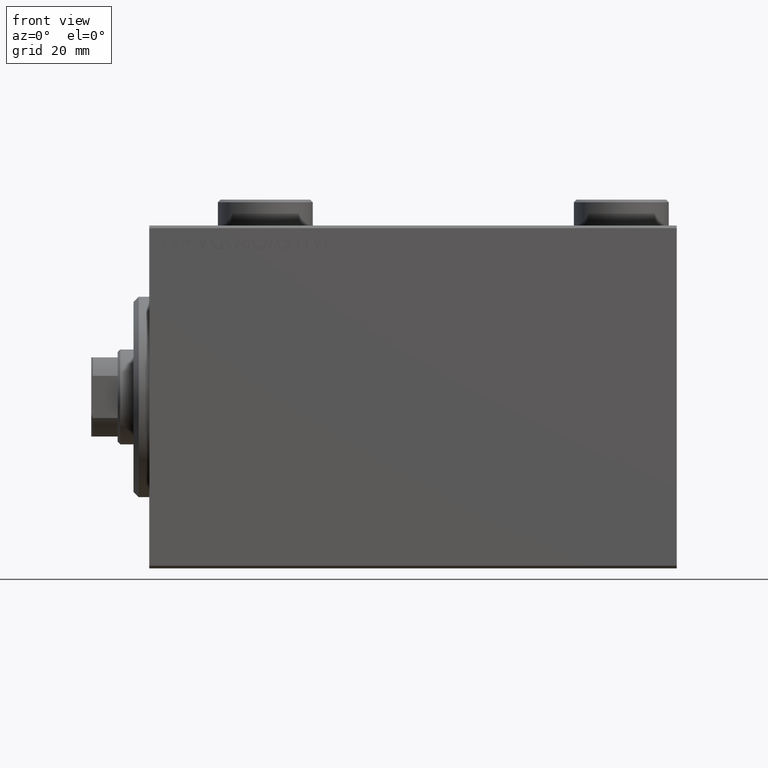
[diagram: clean part render]
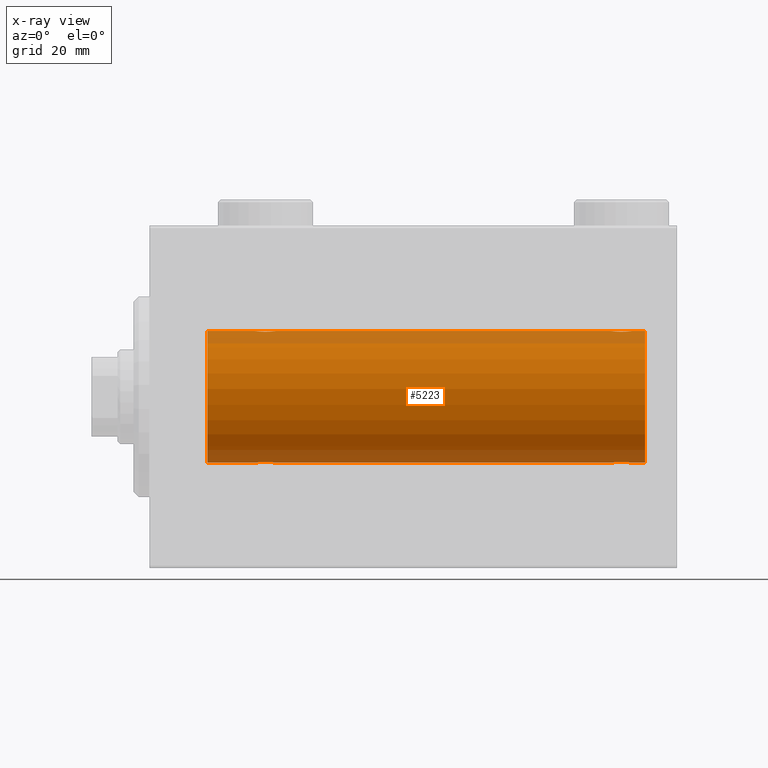
[diagram: x-ray — body ghosted, one internal face saturated and labeled with its STEP entity id]
A machine part, front view, then the same camera in x-ray: the body is ghosted and one INTERNAL B-rep face — a face not visible from any outside direction — is saturated and labeled: STEP entity #5223.
In plain terms, the highlighted cylindrical surface (partial cylindrical patch) has radius 12.5 mm, axis along (-1, -0, -0).
Its self-contained STEP definition (entity closure, byte-faithful):
#487 = EDGE_CURVE ( 'NONE', #20938, #22906, #15159, .T. ) ;
#629 = CARTESIAN_POINT ( 'NONE',  ( 87.50000000000002842, -7.266434456262306043E-23, 12.50000000000000000 ) ) ;
#669 = VERTEX_POINT ( 'NONE', #690 ) ;
#690 = CARTESIAN_POINT ( 'NONE',  ( 94.00000000000000000, 0.000000000000000000, 12.50000000000000000 ) ) ;
#831 = CARTESIAN_POINT ( 'NONE',  ( 24.00000000000000000, -2.019790789754703983E-15, 12.50000000000000000 ) ) ;
#898 = CARTESIAN_POINT ( 'NONE',  ( 23.32116712851443552, -1.507135374967700114, 12.40915432986586708 ) ) ;
#1188 = DIRECTION ( 'NONE',  ( -1.000000000000000000, 0.000000000000000000, 0.000000000000000000 ) ) ;
#1282 = ORIENTED_EDGE ( 'NONE', *, *, #11051, .F. ) ;
#1350 = CARTESIAN_POINT ( 'NONE',  ( 20.67700056892266502, -1.505544071529936634, 12.40934942683854025 ) ) ;
#1884 = CARTESIAN_POINT ( 'NONE',  ( 91.50000000000007105, -0.2646816682749792982, 12.50000000000000178 ) ) ;
#2197 = CARTESIAN_POINT ( 'NONE',  ( 22.26391373102435622, -1.986793270638196551, -12.34112317291864791 ) ) ;
#2420 = CARTESIAN_POINT ( 'NONE',  ( 22.13340250451295077, -1.999916920503817197, -12.33897614545467469 ) ) ;
#2781 = CARTESIAN_POINT ( 'NONE',  ( 90.14425278797730812, -1.897913903092038890, 12.35518060345724933 ) ) ;
#2791 = LINE ( 'NONE', #41729, #31569 ) ;
#2793 = CARTESIAN_POINT ( 'NONE',  ( 94.00000000000000000, 1.530808498934191521E-15, -12.50000000000000000 ) ) ;
#2820 = CYLINDRICAL_SURFACE ( 'NONE', #4971, 12.50000000000000000 ) ;
#2985 = CARTESIAN_POINT ( 'NONE',  ( 91.50000000000004263, -0.2612140938986735050, -12.50000000000000355 ) ) ;
#3214 = CARTESIAN_POINT ( 'NONE',  ( 88.49900207901492877, -1.736403706023271099, -12.37902502246767611 ) ) ;
#3447 = CARTESIAN_POINT ( 'NONE',  ( 91.29785606468260539, -0.8858253204747997822, -12.46915613403960954 ) ) ;
#3660 = EDGE_CURVE ( 'NONE', #669, #10006, #8176, .T. ) ;
#3804 = ORIENTED_EDGE ( 'NONE', *, *, #4597, .T. ) ;
#3907 = CARTESIAN_POINT ( 'NONE',  ( 22.51693726697628506, -1.936441098420709439, 12.34912369794528786 ) ) ;
#4225 = CARTESIAN_POINT ( 'NONE',  ( 87.50000000000002842, -0.2612140938986747818, 12.50000000000000000 ) ) ;
#4362 = CARTESIAN_POINT ( 'NONE',  ( 23.99999999999998934, -0.2646816682749779659, 12.49999999999999822 ) ) ;
#4597 = EDGE_CURVE ( 'NONE', #42626, #5488, #31434, .T. ) ;
#4673 = CARTESIAN_POINT ( 'NONE',  ( 87.76436921980426575, -1.002396200863564291, 12.46022444231050663 ) ) ;
#4878 = DIRECTION ( 'NONE',  ( 0.000000000000000000, 0.000000000000000000, 1.000000000000000000 ) ) ;
#4971 = AXIS2_PLACEMENT_3D ( 'NONE', #41301, #34135, #9732 ) ;
#5223 = ADVANCED_FACE ( 'NONE', ( #33684 ), #2820, .F. ) ;
#5352 = CARTESIAN_POINT ( 'NONE',  ( 91.50000000000002842, 3.163483401492493339E-15, 12.50000000000000000 ) ) ;
#5488 = VERTEX_POINT ( 'NONE', #6739 ) ;
#5869 = CARTESIAN_POINT ( 'NONE',  ( 21.73906502714393341, -1.987194304939077671, -12.34105826212746138 ) ) ;
#6306 = CARTESIAN_POINT ( 'NONE',  ( 22.51961472357873717, -1.935716533151642826, -12.34923763528285257 ) ) ;
#6427 = CARTESIAN_POINT ( 'NONE',  ( 88.17883287148561067, -1.507135374967704999, -12.40915432986586531 ) ) ;
#6662 = CARTESIAN_POINT ( 'NONE',  ( 91.23563078019580530, -1.002396200863558073, -12.46022444231050663 ) ) ;
#6700 = EDGE_CURVE ( 'NONE', #30575, #10006, #18895, .T. ) ;
#6739 = CARTESIAN_POINT ( 'NONE',  ( 24.00000000000000000, 1.530808426277417854E-15, -12.50000000000000000 ) ) ;
#7815 = CARTESIAN_POINT ( 'NONE',  ( 21.73608626897564733, -1.986793270638199882, 12.34112317291865146 ) ) ;
#8176 = LINE ( 'NONE', #22202, #23293 ) ;
#8363 = CARTESIAN_POINT ( 'NONE',  ( 88.17700056892270766, -1.505544071529930639, 12.40934942683854025 ) ) ;
#8495 = CARTESIAN_POINT ( 'NONE',  ( 20.00000000000000000, -0.2612140938986765581, 12.50000000000000000 ) ) ;
#9031 = CARTESIAN_POINT ( 'NONE',  ( 90.38616153879436865, -1.797736511708053264, 12.37015393445321010 ) ) ;
#9328 = CARTESIAN_POINT ( 'NONE',  ( 21.11383846120566332, -1.797736511708062368, -12.37015393445320122 ) ) ;
#9550 = CARTESIAN_POINT ( 'NONE',  ( 22.88874725797039389, -1.796480516834687347, -12.37033750336835247 ) ) ;
#9732 = DIRECTION ( 'NONE',  ( 0.000000000000000000, 0.000000000000000000, 1.000000000000000000 ) ) ;
#9995 = CARTESIAN_POINT ( 'NONE',  ( 20.67883287148555382, -1.507135374967699670, -12.40915432986587064 ) ) ;
#10006 = VERTEX_POINT ( 'NONE', #5352 ) ;
#10112 = ORIENTED_EDGE ( 'NONE', *, *, #32858, .F. ) ;
#10120 = EDGE_LOOP ( 'NONE', ( #10112, #23759, #17552, #3804, #33013, #39964, #24573, #1282, #45045, #11024, #16467, #22193 ) ) ;
#10123 = CARTESIAN_POINT ( 'NONE',  ( 91.08981090228292032, -1.220538259806345893, -12.44075068685996932 ) ) ;
#10357 = CARTESIAN_POINT ( 'NONE',  ( 91.44744340572330543, -0.5247436444070332495, -12.49130933415156264 ) ) ;
#10398 = LINE ( 'NONE', #2793, #13351 ) ;
#10402 = CARTESIAN_POINT ( 'NONE',  ( 94.00000000000000000, 1.530808498934191521E-15, -12.50000000000000000 ) ) ;
#10497 = CARTESIAN_POINT ( 'NONE',  ( 94.00000000000000000, 1.530808498934191521E-15, -12.50000000000000000 ) ) ;
#10589 = CARTESIAN_POINT ( 'NONE',  ( 90.38874725797043652, -1.796480516834679797, -12.37033750336835425 ) ) ;
#10822 = CARTESIAN_POINT ( 'NONE',  ( 88.85574721202272030, -1.897913903092048660, -12.35518060345724933 ) ) ;
#11024 = ORIENTED_EDGE ( 'NONE', *, *, #36709, .F. ) ;
#11051 = EDGE_CURVE ( 'NONE', #41641, #22906, #2791, .T. ) ;
#11055 = CARTESIAN_POINT ( 'NONE',  ( 20.99654425923307599, -1.734959850168413142, 12.37922718965050528 ) ) ;
#11278 = CARTESIAN_POINT ( 'NONE',  ( 19.99999999999999645, -7.265724481447607133E-23, 12.50000000000000000 ) ) ;
#11497 = CARTESIAN_POINT ( 'NONE',  ( 22.88616153879432957, -1.797736511708064366, 12.37015393445321010 ) ) ;
#11722 = DIRECTION ( 'NONE',  ( -1.000000000000000000, -0.000000000000000000, -0.000000000000000000 ) ) ;
#11729 = CARTESIAN_POINT ( 'NONE',  ( 22.64425278797729746, -1.897913903092049104, 12.35518060345724933 ) ) ;
#11841 = LINE ( 'NONE', #25857, #17841 ) ;
#12498 = CARTESIAN_POINT ( 'NONE',  ( 88.49654425923313283, -1.734959850168412254, 12.37922718965051061 ) ) ;
#12572 = CARTESIAN_POINT ( 'NONE',  ( 23.22027149897420628, -1.589951752150275732, -12.39868561261689273 ) ) ;
#12939 = CARTESIAN_POINT ( 'NONE',  ( 90.01693726697629927, -1.936441098420705220, 12.34912369794528786 ) ) ;
#13022 = CARTESIAN_POINT ( 'NONE',  ( 21.35574721202270254, -1.897913903092047327, -12.35518060345725289 ) ) ;
#13074 = EDGE_CURVE ( 'NONE', #40538, #34077, #35253, .T. ) ;
#13250 = CARTESIAN_POINT ( 'NONE',  ( 94.00000000000000000, 1.530808498934191521E-15, -12.50000000000000000 ) ) ;
#13351 = VECTOR ( 'NONE', #13621, 1000.000000000000000 ) ;
#13363 = CARTESIAN_POINT ( 'NONE',  ( 90.72027149897422760, -1.589951752150273512, -12.39868561261689095 ) ) ;
#13392 = CARTESIAN_POINT ( 'NONE',  ( 91.44665679898383814, -0.5275951738695600080, 12.49118442338578561 ) ) ;
#13469 = CARTESIAN_POINT ( 'NONE',  ( 21.86910032676576421, -2.000082296475566679, -12.33894933996983490 ) ) ;
#13621 = DIRECTION ( 'NONE',  ( -1.000000000000000000, -0.000000000000000000, -0.000000000000000000 ) ) ;
#13815 = CARTESIAN_POINT ( 'NONE',  ( 89.63340250451300051, -1.999916920503816531, -12.33897614545467647 ) ) ;
#14446 = VECTOR ( 'NONE', #11722, 1000.000000000000000 ) ;
#15159 = CIRCLE ( 'NONE', #32792, 12.50000000000000000 ) ;
#15404 = CARTESIAN_POINT ( 'NONE',  ( 23.74662136620892383, -1.008535157355843648, 12.46157701909767823 ) ) ;
#15578 = CARTESIAN_POINT ( 'NONE',  ( 19.99999999999999645, -7.265724481447607133E-23, 12.50000000000000000 ) ) ;
#16092 = VERTEX_POINT ( 'NONE', #18957 ) ;
#16467 = ORIENTED_EDGE ( 'NONE', *, *, #6700, .T. ) ;
#16600 = CARTESIAN_POINT ( 'NONE',  ( 89.36659749548705634, -1.999916920503812534, 12.33897614545467647 ) ) ;
#16684 = CARTESIAN_POINT ( 'NONE',  ( 23.32299943107732432, -1.505544071529935080, -12.40934942683853848 ) ) ;
#16910 = CARTESIAN_POINT ( 'NONE',  ( 23.79785606468258052, -0.8858253204748003373, -12.46915613403960954 ) ) ;
#17028 = CARTESIAN_POINT ( 'NONE',  ( 90.50345574076696664, -1.734959850168409146, -12.37922718965050528 ) ) ;
#17248 = CARTESIAN_POINT ( 'NONE',  ( 87.90255225308978027, -1.231226695485375888, -12.44059298055988094 ) ) ;
#17487 = CARTESIAN_POINT ( 'NONE',  ( 87.50000000000000000, -0.2646816682749892902, -12.49999999999999289 ) ) ;
#17552 = ORIENTED_EDGE ( 'NONE', *, *, #34358, .T. ) ;
#17841 = VECTOR ( 'NONE', #39937, 1000.000000000000000 ) ;
#18210 = VECTOR ( 'NONE', #24525, 1000.000000000000000 ) ;
#18480 = B_SPLINE_CURVE_WITH_KNOTS ( 'NONE', 3,
 ( #41916, #2985, #10357, #3447, #6662, #10123, #45614, #20709, #13363, #17028, #10589, #34741, #35437, #20482, #13815, #38217, #37985, #27375, #10822, #24850, #3214, #45387, #6427, #17248, #31067, #31288, #17487, #27838 ),
 .UNSPECIFIED., .F., .F.,
 ( 4, 2, 2, 2, 2, 2, 2, 2, 2, 2, 2, 2, 2, 4 ),
 ( 0.006262980370572168026, 0.007045658964677356875, 0.007436998261729959106, 0.007828337558782561337, 0.008219676855835163568, 0.008611016152887765798, 0.009002355449940368029, 0.009393694746992970260, 0.009785034044045572491, 0.01017637334109817472, 0.01056771263815077869, 0.01095905193520338092, 0.01174173052930858538, 0.01252440912341379158 ),
 .UNSPECIFIED. ) ;
#18895 = B_SPLINE_CURVE_WITH_KNOTS ( 'NONE', 3,
 ( #21707, #4225, #25613, #36216, #4673, #32750, #39920, #8363, #36443, #12498, #44962, #37116, #34102, #41266, #16600, #30424, #23513, #12939, #2781, #9031, #34324, #40812, #27183, #37573, #26963, #13392, #1884, #30643 ),
 .UNSPECIFIED., .F., .F.,
 ( 4, 2, 2, 2, 2, 2, 2, 2, 2, 2, 2, 2, 2, 4 ),
 ( 0.006262980370572151546, 0.007045658964677331722, 0.007436998261729929616, 0.007828337558782528377, 0.008219676855835125404, 0.008611016152887724165, 0.009002355449940321191, 0.009393694746992919953, 0.009785034044045518714, 0.01017637334109811748, 0.01056771263815071624, 0.01095905193520331326, 0.01174173052930854028, 0.01252440912341376555 ),
 .UNSPECIFIED. ) ;
#18957 = CARTESIAN_POINT ( 'NONE',  ( 19.99999999999999645, -3.213890523917628161E-15, -12.50000000000000000 ) ) ;
#19171 = CIRCLE ( 'NONE', #26511, 12.50000000000000000 ) ;
#19700 = CARTESIAN_POINT ( 'NONE',  ( 24.00000000000000711, -0.2612140938986747818, -12.50000000000000533 ) ) ;
#20148 = CARTESIAN_POINT ( 'NONE',  ( 20.25337863379106551, -1.008535157355840761, -12.46157701909767646 ) ) ;
#20368 = CARTESIAN_POINT ( 'NONE',  ( 20.78145880458060901, -1.591305132013878021, -12.39851226212236313 ) ) ;
#20482 = CARTESIAN_POINT ( 'NONE',  ( 89.76391373102438820, -1.986793270638198994, -12.34112317291865146 ) ) ;
#20709 = CARTESIAN_POINT ( 'NONE',  ( 90.82299943107734919, -1.505544071529932193, -12.40934942683853848 ) ) ;
#20938 = VERTEX_POINT ( 'NONE', #41511 ) ;
#21627 = CARTESIAN_POINT ( 'NONE',  ( 23.00099792098507834, -1.736403706023272875, 12.37902502246767789 ) ) ;
#21707 = CARTESIAN_POINT ( 'NONE',  ( 87.50000000000002842, -7.266434456262306043E-23, 12.50000000000000000 ) ) ;
#21852 = CARTESIAN_POINT ( 'NONE',  ( 23.21854119541937678, -1.591305132013879131, 12.39851226212236135 ) ) ;
#22193 = ORIENTED_EDGE ( 'NONE', *, *, #3660, .F. ) ;
#22202 = CARTESIAN_POINT ( 'NONE',  ( 94.00000000000000000, 0.000000000000000000, 12.50000000000000000 ) ) ;
#22292 = CARTESIAN_POINT ( 'NONE',  ( 23.94665679898379906, -0.5275951738695691118, 12.49118442338578561 ) ) ;
#22518 = CARTESIAN_POINT ( 'NONE',  ( 21.11125274202960256, -1.796480516834689567, 12.37033750336835602 ) ) ;
#22906 = VERTEX_POINT ( 'NONE', #42743 ) ;
#23293 = VECTOR ( 'NONE', #37388, 1000.000000000000000 ) ;
#23367 = CARTESIAN_POINT ( 'NONE',  ( 23.00345574076691335, -1.734959850168410256, -12.37922718965050528 ) ) ;
#23513 = CARTESIAN_POINT ( 'NONE',  ( 89.76093497285607725, -1.987194304939074341, 12.34105826212746138 ) ) ;
#23586 = CARTESIAN_POINT ( 'NONE',  ( 20.40255225308977671, -1.231226695485369893, -12.44059298055988627 ) ) ;
#23759 = ORIENTED_EDGE ( 'NONE', *, *, #13074, .T. ) ;
#24314 = CARTESIAN_POINT ( 'NONE',  ( 94.00000000000000000, 0.000000000000000000, 0.000000000000000000 ) ) ;
#24525 = DIRECTION ( 'NONE',  ( -1.000000000000000000, -0.000000000000000000, -0.000000000000000000 ) ) ;
#24554 = CARTESIAN_POINT ( 'NONE',  ( 91.50000000000002842, 1.530808426270318106E-15, -12.50000000000000000 ) ) ;
#24573 = ORIENTED_EDGE ( 'NONE', *, *, #487, .T. ) ;
#24743 = CARTESIAN_POINT ( 'NONE',  ( 87.50000000000002842, -8.176262823880599614E-15, -12.50000000000000000 ) ) ;
#24850 = CARTESIAN_POINT ( 'NONE',  ( 88.61383846120568819, -1.797736511708065033, -12.37015393445320832 ) ) ;
#25082 = CARTESIAN_POINT ( 'NONE',  ( 21.35356103036408371, -1.897190184049190043, 12.35529285772521391 ) ) ;
#25527 = CARTESIAN_POINT ( 'NONE',  ( 20.20214393531741237, -0.8858253204748030019, 12.46915613403961132 ) ) ;
#25613 = CARTESIAN_POINT ( 'NONE',  ( 87.55255659427669457, -0.5247436444070334716, 12.49130933415156441 ) ) ;
#25857 = CARTESIAN_POINT ( 'NONE',  ( 94.00000000000000000, 0.000000000000000000, 12.50000000000000000 ) ) ;
#26511 = AXIS2_PLACEMENT_3D ( 'NONE', #24314, #31691, #35826 ) ;
#26592 = CARTESIAN_POINT ( 'NONE',  ( 23.94744340572329833, -0.5247436444070328054, -12.49130933415156619 ) ) ;
#26963 = CARTESIAN_POINT ( 'NONE',  ( 91.24662136620899844, -1.008535157355832768, 12.46157701909768178 ) ) ;
#27039 = CARTESIAN_POINT ( 'NONE',  ( 20.00000000000000000, -0.2646816682749822958, -12.50000000000000000 ) ) ;
#27183 = CARTESIAN_POINT ( 'NONE',  ( 90.82116712851447460, -1.507135374967687458, 12.40915432986586886 ) ) ;
#27375 = CARTESIAN_POINT ( 'NONE',  ( 88.98306273302374336, -1.936441098420709883, -12.34912369794528786 ) ) ;
#27486 = CARTESIAN_POINT ( 'NONE',  ( 21.48306273302371494, -1.936441098420706997, -12.34912369794528431 ) ) ;
#27838 = CARTESIAN_POINT ( 'NONE',  ( 87.50000000000002842, -8.176262823880599614E-15, -12.50000000000000000 ) ) ;
#27879 = DIRECTION ( 'NONE',  ( -1.000000000000000000, -0.000000000000000000, -0.000000000000000000 ) ) ;
#27963 = VERTEX_POINT ( 'NONE', #831 ) ;
#29447 = CARTESIAN_POINT ( 'NONE',  ( 20.05255659427669812, -0.5247436444070349149, 12.49130933415156974 ) ) ;
#30424 = CARTESIAN_POINT ( 'NONE',  ( 89.63089967323422513, -2.000082296475560906, 12.33894933996983490 ) ) ;
#30575 = VERTEX_POINT ( 'NONE', #629 ) ;
#30643 = CARTESIAN_POINT ( 'NONE',  ( 91.50000000000002842, 3.163483401492493339E-15, 12.50000000000000000 ) ) ;
#30720 = CARTESIAN_POINT ( 'NONE',  ( 22.64643896963591985, -1.897190184049187378, -12.35529285772521924 ) ) ;
#30952 = CARTESIAN_POINT ( 'NONE',  ( 23.73563078019576977, -1.002396200863559184, -12.46022444231050663 ) ) ;
#31067 = CARTESIAN_POINT ( 'NONE',  ( 87.75337863379110104, -1.008535157355851197, -12.46157701909767823 ) ) ;
#31288 = CARTESIAN_POINT ( 'NONE',  ( 87.55334320101623291, -0.5275951738695788817, -12.49118442338578383 ) ) ;
#31434 = LINE ( 'NONE', #10497, #18210 ) ;
#31569 = VECTOR ( 'NONE', #27879, 1000.000000000000000 ) ;
#31691 = DIRECTION ( 'NONE',  ( -1.000000000000000000, 0.000000000000000000, 0.000000000000000000 ) ) ;
#32446 = CARTESIAN_POINT ( 'NONE',  ( 20.41018909771709744, -1.220538259806348114, 12.44075068685996754 ) ) ;
#32750 = CARTESIAN_POINT ( 'NONE',  ( 87.91018909771710810, -1.220538259806350778, 12.44075068685996754 ) ) ;
#32792 = AXIS2_PLACEMENT_3D ( 'NONE', #36197, #1188, #4878 ) ;
#32858 = EDGE_CURVE ( 'NONE', #40538, #669, #19171, .T. ) ;
#32894 = CARTESIAN_POINT ( 'NONE',  ( 23.59744774691022684, -1.231226695485370337, 12.44059298055987917 ) ) ;
#33013 = ORIENTED_EDGE ( 'NONE', *, *, #36387, .T. ) ;
#33568 = EDGE_CURVE ( 'NONE', #16092, #20938, #10398, .T. ) ;
#33684 = FACE_OUTER_BOUND ( 'NONE', #10120, .T. ) ;
#33952 = CARTESIAN_POINT ( 'NONE',  ( 20.99900207901491811, -1.736403706023270654, -12.37902502246767966 ) ) ;
#34077 = VERTEX_POINT ( 'NONE', #24554 ) ;
#34102 = CARTESIAN_POINT ( 'NONE',  ( 88.98038527642128770, -1.935716533151639718, 12.34923763528284546 ) ) ;
#34135 = DIRECTION ( 'NONE',  ( -1.000000000000000000, -0.000000000000000000, -0.000000000000000000 ) ) ;
#34176 = CARTESIAN_POINT ( 'NONE',  ( 20.05334320101619738, -0.5275951738695662252, -12.49118442338578561 ) ) ;
#34324 = CARTESIAN_POINT ( 'NONE',  ( 90.50099792098511386, -1.736403706023266658, 12.37902502246767789 ) ) ;
#34358 = EDGE_CURVE ( 'NONE', #34077, #42626, #18480, .T. ) ;
#34463 = EDGE_CURVE ( 'NONE', #41641, #27963, #36091, .T. ) ;
#34741 = CARTESIAN_POINT ( 'NONE',  ( 90.14643896963595182, -1.897190184049181827, -12.35529285772521568 ) ) ;
#35253 = LINE ( 'NONE', #10402, #14446 ) ;
#35437 = CARTESIAN_POINT ( 'NONE',  ( 90.01961472357875493, -1.935716533151645269, -12.34923763528284901 ) ) ;
#35663 = CARTESIAN_POINT ( 'NONE',  ( 21.86659749548704212, -1.999916920503819862, 12.33897614545467469 ) ) ;
#35826 = DIRECTION ( 'NONE',  ( 0.000000000000000000, 0.000000000000000000, 1.000000000000000000 ) ) ;
#35896 = CARTESIAN_POINT ( 'NONE',  ( 20.26436921980423378, -1.002396200863559850, 12.46022444231050841 ) ) ;
#36091 = B_SPLINE_CURVE_WITH_KNOTS ( 'NONE', 3,
 ( #11278, #8495, #29447, #25527, #35896, #32446, #43292, #1350, #40053, #11055, #22518, #25082, #42839, #7815, #35663, #39603, #39367, #3907, #11729, #11497, #21627, #21852, #898, #32894, #15404, #22292, #4362, #43514 ),
 .UNSPECIFIED., .F., .F.,
 ( 4, 2, 2, 2, 2, 2, 2, 2, 2, 2, 2, 2, 2, 4 ),
 ( 0.006262980370572162822, 0.007045658964677358610, 0.007436998261729958239, 0.007828337558782557867, 0.008219676855835158363, 0.008611016152887758859, 0.009002355449940359355, 0.009393694746992958117, 0.009785034044045558613, 0.01017637334109815911, 0.01056771263815075960, 0.01095905193520336010, 0.01174173052930856803, 0.01252440912341377596 ),
 .UNSPECIFIED. ) ;
#36197 = CARTESIAN_POINT ( 'NONE',  ( 10.99999999999999645, 0.000000000000000000, 0.000000000000000000 ) ) ;
#36216 = CARTESIAN_POINT ( 'NONE',  ( 87.70214393531739461, -0.8858253204748003373, 12.46915613403960421 ) ) ;
#36387 = EDGE_CURVE ( 'NONE', #5488, #16092, #45325, .T. ) ;
#36443 = CARTESIAN_POINT ( 'NONE',  ( 88.27972850102584346, -1.589951752150278397, 12.39868561261688740 ) ) ;
#36709 = EDGE_CURVE ( 'NONE', #30575, #27963, #11841, .T. ) ;
#37116 = CARTESIAN_POINT ( 'NONE',  ( 88.85356103036409081, -1.897190184049181161, 12.35529285772521213 ) ) ;
#37388 = DIRECTION ( 'NONE',  ( -1.000000000000000000, -0.000000000000000000, -0.000000000000000000 ) ) ;
#37421 = CARTESIAN_POINT ( 'NONE',  ( 23.50722151467992660, -1.321088093821078502, -12.43033959299025248 ) ) ;
#37573 = CARTESIAN_POINT ( 'NONE',  ( 91.09744774691026237, -1.231226695485355904, 12.44059298055988450 ) ) ;
#37862 = CARTESIAN_POINT ( 'NONE',  ( 23.58981090228289546, -1.220538259806347225, -12.44075068685997287 ) ) ;
#37985 = CARTESIAN_POINT ( 'NONE',  ( 89.23906502714396538, -1.987194304939079004, -12.34105826212746138 ) ) ;
#38217 = CARTESIAN_POINT ( 'NONE',  ( 89.36910032676583171, -2.000082296475568011, -12.33894933996983667 ) ) ;
#39367 = CARTESIAN_POINT ( 'NONE',  ( 22.26093497285606304, -1.987194304939079004, 12.34105826212746138 ) ) ;
#39603 = CARTESIAN_POINT ( 'NONE',  ( 22.13089967323422158, -2.000082296475567567, 12.33894933996983134 ) ) ;
#39920 = CARTESIAN_POINT ( 'NONE',  ( 87.99277848532010182, -1.321088093821075393, 12.43033959299025426 ) ) ;
#39937 = DIRECTION ( 'NONE',  ( -1.000000000000000000, -0.000000000000000000, -0.000000000000000000 ) ) ;
#39964 = ORIENTED_EDGE ( 'NONE', *, *, #33568, .T. ) ;
#40053 = CARTESIAN_POINT ( 'NONE',  ( 20.77972850102579372, -1.589951752150277953, 12.39868561261689095 ) ) ;
#40538 = VERTEX_POINT ( 'NONE', #13250 ) ;
#40812 = CARTESIAN_POINT ( 'NONE',  ( 90.71854119541939099, -1.591305132013873358, 12.39851226212235957 ) ) ;
#41266 = CARTESIAN_POINT ( 'NONE',  ( 89.23608626897569707, -1.986793270638193443, 12.34112317291865146 ) ) ;
#41301 = CARTESIAN_POINT ( 'NONE',  ( 94.00000000000000000, 0.000000000000000000, 0.000000000000000000 ) ) ;
#41511 = CARTESIAN_POINT ( 'NONE',  ( 10.99999999999999645, 1.530808498934191521E-15, -12.50000000000000000 ) ) ;
#41641 = VERTEX_POINT ( 'NONE', #15578 ) ;
#41729 = CARTESIAN_POINT ( 'NONE',  ( 94.00000000000000000, 0.000000000000000000, 12.50000000000000000 ) ) ;
#41916 = CARTESIAN_POINT ( 'NONE',  ( 91.50000000000002842, 1.530808426270318106E-15, -12.50000000000000000 ) ) ;
#42626 = VERTEX_POINT ( 'NONE', #24743 ) ;
#42743 = CARTESIAN_POINT ( 'NONE',  ( 10.99999999999999645, 0.000000000000000000, 12.50000000000000000 ) ) ;
#42839 = CARTESIAN_POINT ( 'NONE',  ( 21.48038527642126283, -1.935716533151644381, 12.34923763528284901 ) ) ;
#43292 = CARTESIAN_POINT ( 'NONE',  ( 20.49277848532006274, -1.321088093821079168, 12.43033959299025071 ) ) ;
#43514 = CARTESIAN_POINT ( 'NONE',  ( 24.00000000000000000, -2.019790789754703983E-15, 12.50000000000000000 ) ) ;
#44353 = CARTESIAN_POINT ( 'NONE',  ( 19.99999999999999645, -3.213890523917628161E-15, -12.50000000000000000 ) ) ;
#44575 = CARTESIAN_POINT ( 'NONE',  ( 24.00000000000000000, 1.530808426277417854E-15, -12.50000000000000000 ) ) ;
#44962 = CARTESIAN_POINT ( 'NONE',  ( 88.61125274202966295, -1.796480516834681573, 12.37033750336835958 ) ) ;
#45045 = ORIENTED_EDGE ( 'NONE', *, *, #34463, .T. ) ;
#45325 = B_SPLINE_CURVE_WITH_KNOTS ( 'NONE', 3,
 ( #44575, #19700, #26592, #16910, #30952, #37862, #37421, #16684, #12572, #23367, #9550, #30720, #6306, #2197, #2420, #13469, #5869, #27486, #13022, #9328, #33952, #20368, #9995, #23586, #20148, #34176, #27039, #44353 ),
 .UNSPECIFIED., .F., .F.,
 ( 4, 2, 2, 2, 2, 2, 2, 2, 2, 2, 2, 2, 2, 4 ),
 ( 0.006262980370572176700, 0.007045658964677373355, 0.007436998261729973851, 0.007828337558782575215, 0.008219676855835175711, 0.008611016152887776207, 0.009002355449940376703, 0.009393694746992977199, 0.009785034044045577695, 0.01017637334109817646, 0.01056771263815077869, 0.01095905193520337745, 0.01174173052930858711, 0.01252440912341379504 ),
 .UNSPECIFIED. ) ;
#45387 = CARTESIAN_POINT ( 'NONE',  ( 88.28145880458060901, -1.591305132013878909, -12.39851226212235957 ) ) ;
#45614 = CARTESIAN_POINT ( 'NONE',  ( 91.00722151467996923, -1.321088093821075393, -12.43033959299025426 ) ) ;